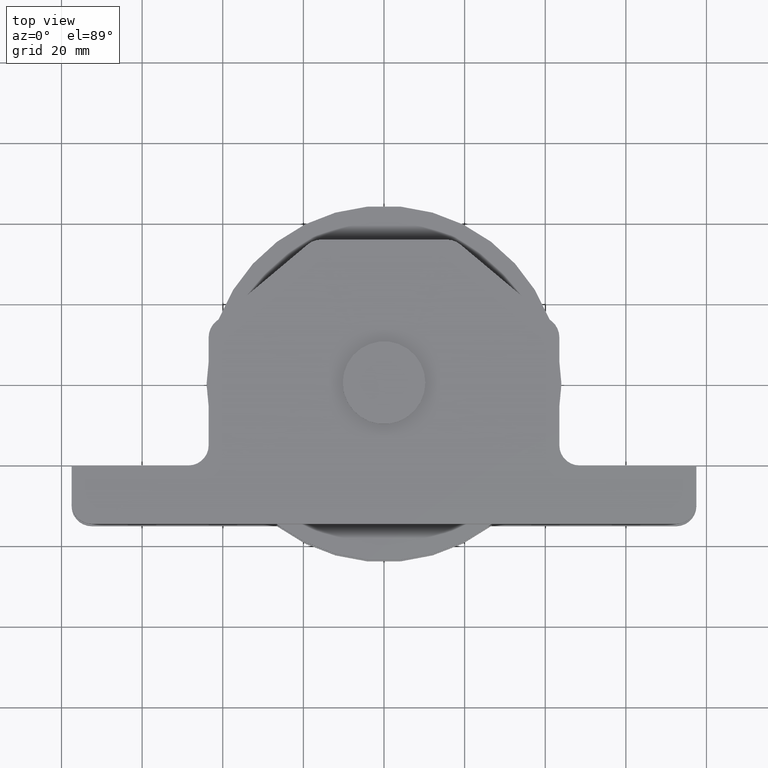
[diagram: clean part render]
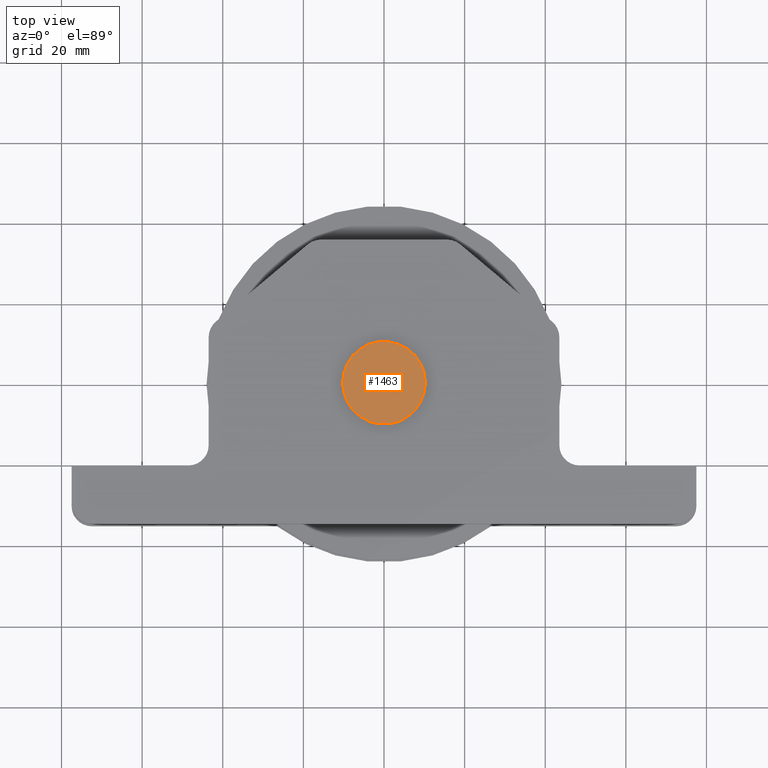
[diagram: same view with one face highlighted and labeled with its STEP entity id]
A machine part, top view. The second image highlights one B-rep face of the part: STEP entity #1463.
In plain terms, the highlighted planar face has unit normal (0, 0, 1).
Its self-contained STEP definition (entity closure, byte-faithful):
#674 = EDGE_CURVE ( 'NONE', #1587, #1587, #5431, .T. ) ;
#1463 = ADVANCED_FACE ( 'NONE', ( #2822 ), #1596, .T. ) ;
#1587 = VERTEX_POINT ( 'NONE', #13336 ) ;
#1596 = PLANE ( 'NONE',  #1829 ) ;
#1829 = AXIS2_PLACEMENT_3D ( 'NONE', #6167, #10622, #2812 ) ;
#2812 = DIRECTION ( 'NONE',  ( 1.000000000000000000, 0.0000000000000000000, -0.0000000000000000000 ) ) ;
#2822 = FACE_OUTER_BOUND ( 'NONE', #11002, .T. ) ;
#2854 = AXIS2_PLACEMENT_3D ( 'NONE', #9735, #4180, #9832 ) ;
#4180 = DIRECTION ( 'NONE',  ( 0.0000000000000000000, 0.0000000000000000000, 1.000000000000000000 ) ) ;
#5431 = CIRCLE ( 'NONE', #2854, 10.25000000000000000 ) ;
#6102 = ORIENTED_EDGE ( 'NONE', *, *, #674, .T. ) ;
#6167 = CARTESIAN_POINT ( 'NONE',  ( 0.0000000000000000000, 0.0000000000000000000, 17.50000000000000000 ) ) ;
#9735 = CARTESIAN_POINT ( 'NONE',  ( 0.0000000000000000000, 0.0000000000000000000, 17.50000000000000000 ) ) ;
#9832 = DIRECTION ( 'NONE',  ( 1.000000000000000000, 0.0000000000000000000, 0.0000000000000000000 ) ) ;
#10622 = DIRECTION ( 'NONE',  ( 0.0000000000000000000, 0.0000000000000000000, 1.000000000000000000 ) ) ;
#11002 = EDGE_LOOP ( 'NONE', ( #6102 ) ) ;
#13336 = CARTESIAN_POINT ( 'NONE',  ( 10.25000000000000000, 0.0000000000000000000, 17.50000000000000000 ) ) ;